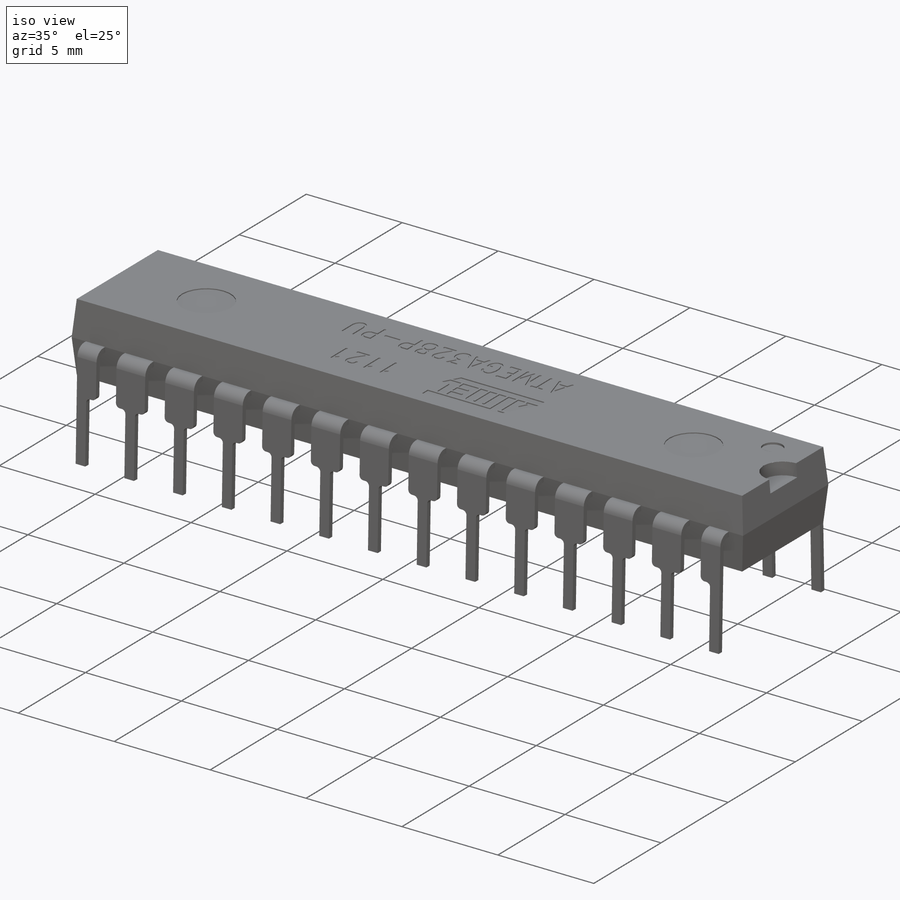
[diagram: iso view]
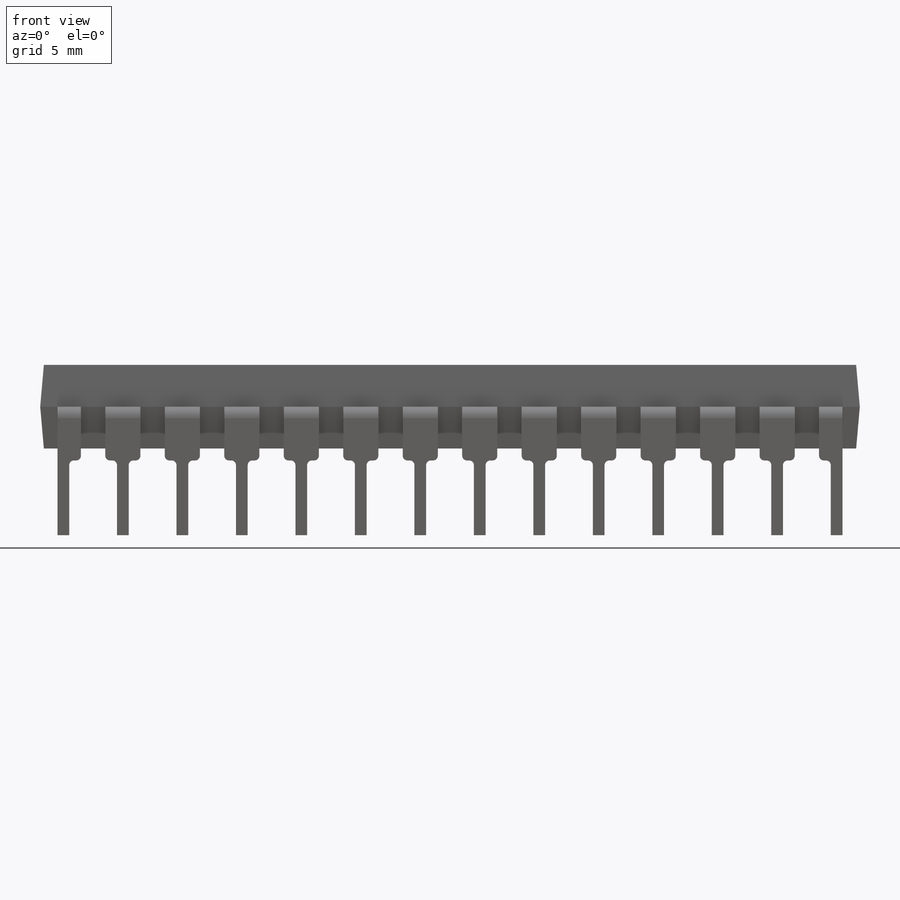
[diagram: front view]
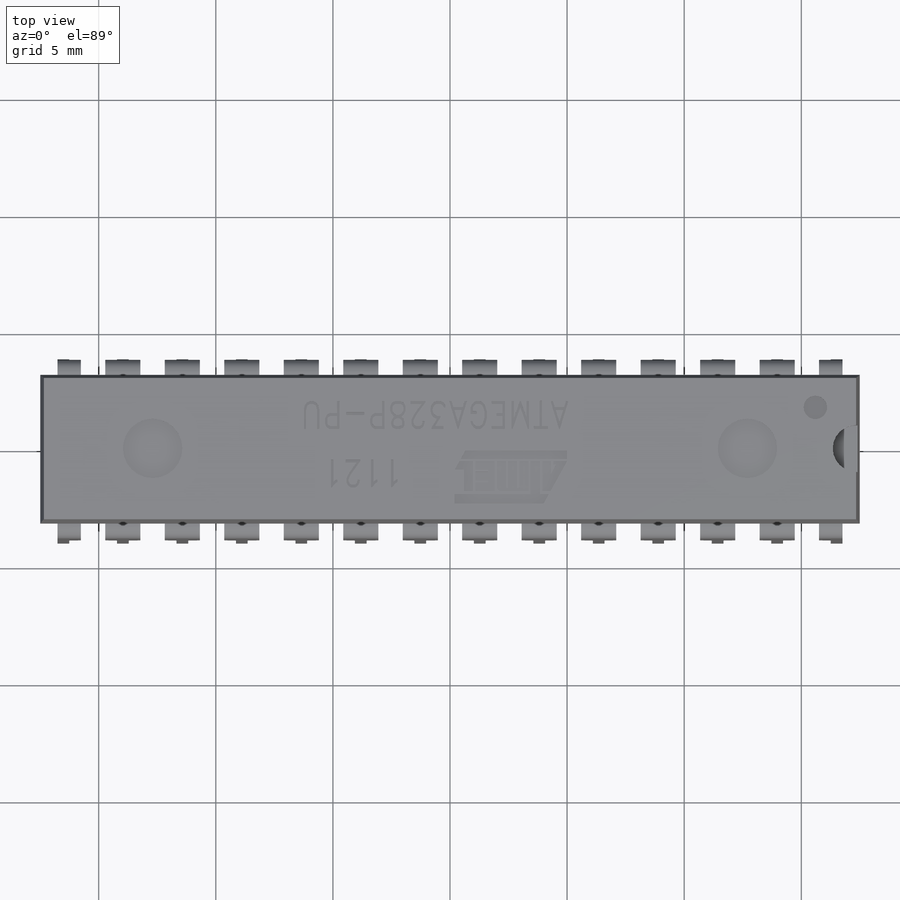
[diagram: top view]
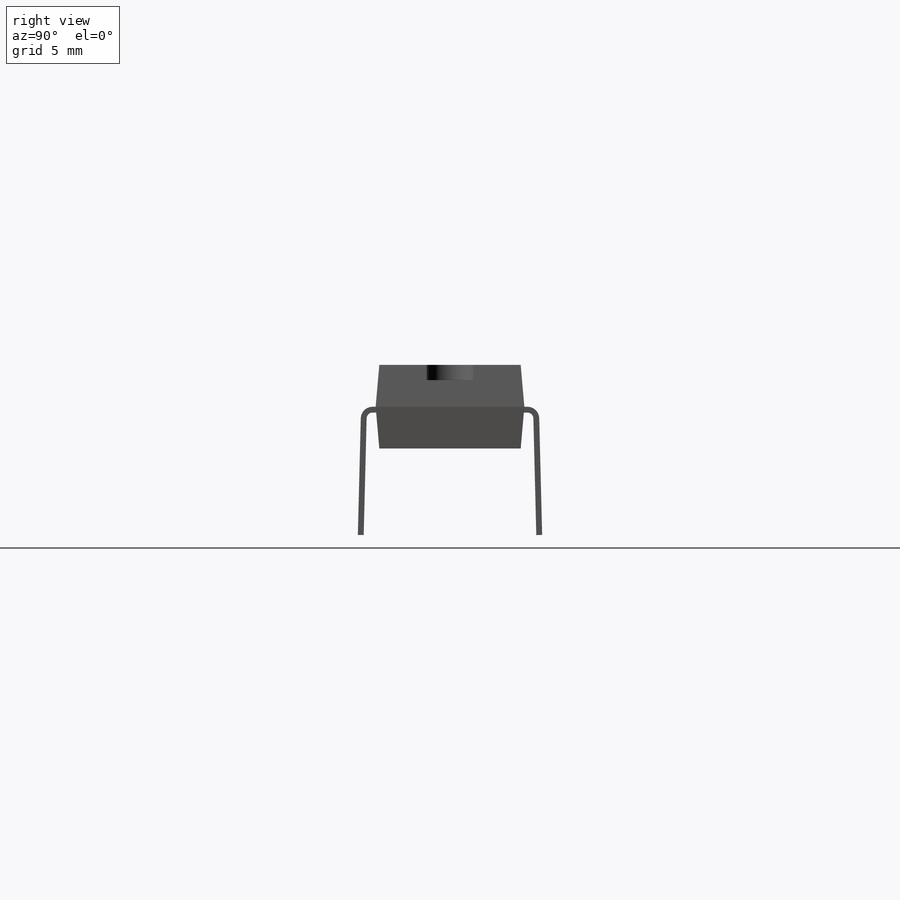
[diagram: right view]
SOLIDWORKS PART (.sldprt)
format: sldprt  version: not decoded by parser v0  size: 1,488,896 bytes
history: native  units: mm
features: sketch x9, cut_extrude x7, material x1, extrude x1 (+13 scaffold rows collapsed)
feature tree (31):
  scaffold x13  (default folders/planes/origin — collapsed)
  material  "Pure Silver"
  sketch  "Sketch1"  dims[c1.D1=0.5mm c1.D2=7.62mm c1.D3=3.81mm c1.D4=3.18mm c1.D5=2.295mm c1.D6=3.81mm c2.D3=3.81mm c2.D6=7.62mm c2.D2=7.62mm c3.D6=7.87mm c3.D7=3.935mm c3.D1=33.52mm c3.D5=0.25mm c4.D6=1.0mm c4.D7=5.0mm]
  sketch  "Sketch2"  dims[c1.D7=0.2mm c1.D1=0.5mm c1.D2=2.54mm c1.D3=1.52mm c1.D4=1.52mm c1.D5=1.5mm c1.D6=1.5mm c2.D7=2.795mm c2.D1=0.5mm c2.D6=0.5mm c2.D8=3.5mm c2.D10=4.56mm c2.D12=2.54mm c2.D9=6.0 c2.D11=6.0]
  cut_extrude  "Cut-Extrude1"  [1 undecoded]
  sketch  "Sketch3"  dims[c1.D1=6.35mm c1.D2=3.175mm c1.D3=4.08mm c1.D4=0.51mm c2.D2=6.35mm c2.D1=~2.301414mm c3.D1=85.0deg c3.D5=~2.277343mm c4.D5=85.0deg c4.D6=3.175mm c4.D7=3.57mm c4.D1=1.285mm c5.D1=85.0deg]
  extrude  "Boss-Extrude1"  Depth=35mm
  sketch  "Sketch4"  dims[c1.D1=8.382mm c2.D1=5.0deg c2.D2=2.285mm c3.D2=5.0deg c3.D3=40.0mm c3.D4=20.0mm]
  cut_extrude  "Cut-Extrude2"  [1 undecoded]
  sketch  "Sketch5"  dims[D1=2.0mm]
  cut_extrude  "Cut-Extrude3"  Depth=0.65mm
  sketch  "Sketch6"  dims[c1.D25=0.2mm c1.D26=0.06mm c1.D28=0.02mm c1.D33=0.03mm c1.D1=0.09mm c1.D2=0.09mm c1.D3=0.09mm c1.D4=0.11mm c1.D5=61.0deg c1.D6=0.15mm c1.D7=0.11mm c1.D8=0.37mm c1.D9=0.37mm c1.D10=0.37mm c1.D11=0.42mm c1.D12=0.1mm c1.D13=0.1mm c1.D14=0.1mm c1.D15=0.1mm c1.D16=0.1mm c1.D17=0.1mm c1.D18=1.06mm c1.D19=0.4mm c1.D20=0.38mm c1.D21=0.38mm c1.D22=0.38mm c1.D23=0.82mm c1.D24=4.8mm c1.D27=0.14mm c1.D29=0.38mm c1.D30=0.38mm c1.D31=0.1mm c1.D32=0.56mm c1.D34=0.6mm c1.D35=0.65mm c1.D36=0.35mm c1.D37=0.1mm c2.D34=5.0mm]
  cut_extrude  "Cut-Extrude4"  Depth=0.05mm
  sketch  "Sketch8"  dims[D1=2.0mm D2=0.5mm D3=2.0mm D4=5.1mm]
  cut_extrude  "Cut-Extrude5"  Depth=0.05mm
  sketch  "Sketch9"  dims[D1=2.54mm D2=12.7mm D3=12.7mm]
  cut_extrude  "Cut-Extrude6"  Depth=0.05mm
  sketch  "Sketch10"  dims[D1=1.0mm D2=15.6mm D3=1.75mm]
  cut_extrude  "Cut-Extrude7"  Depth=0.1mm
decode coverage: 15 of 17 modeling features carry decoded parameters
note: ~ marks probable driven/reference dimensions
note: 2 parameter values undecoded
note: suppression state not decoded; provenance and decode notes live in map.json
